MODEL gtkWave
KIND library
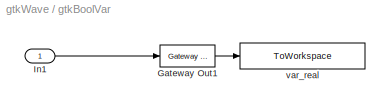
BLOCK [SubSystem] gtkBoolVar
  MaskDescription = Capture a Boolean signal to view in gtkWave.
  MaskDisplay = disp('gtkBool')
  MaskIconFrame = on
  MaskIconOpaque = on
  MaskIconRotate = none
  MaskIconUnits = autoscale
  MaskInitialization = gtkBool_init
  MaskSelfModifiable = on
  MinAlgLoopOccurrences = off
  Ports = [1]
  RTWSystemCode = Auto
  TreatAsAtomicUnit = off
BLOCK [Reference] gtkBoolVar/Gateway Out1  REF=xbsIndex_r3/Gateway Out
  LOCs = {}
  Ports = [1, 1]
  SourceBlock = xbsIndex_r3/Gateway Out
  SourceType = Xilinx Gateway Out
  arith_type = Boolean
  bin_pt = 6
  hdl_port = off
  locs_specified = off
  nbits = 8
  needs_fixed_name = off
  output_type = Double
  overflow = Wrap
  quantization = Truncate
  show_param = off
  timing_constraint = None
  xl_area = [0, 0, 0, 0, 0, 0, 0]
  xl_use_area = off
BLOCK [Inport] gtkBoolVar/In1
  IconDisplay = Port number
  LatchInput = off
  Port = 1
BLOCK [ToWorkspace] gtkBoolVar/var_real
  MaxDataPoints = inf
  SampleTime = -1
  SaveFormat = Structure With Time
  VariableName = gtk_gtkWave__gtkBoolVar_bool
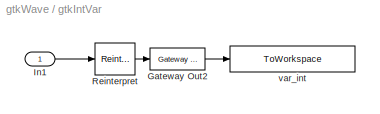
BLOCK [SubSystem] gtkIntVar
  MaskDescription = Capture an Integer signal to view in gtkWave.\ngtkWave does not support fixed point variables, so all integers will appear with binary point at 0.\nThe input signal to this block should be less than 50 bits wide, as it is represented in Matlab as a double.
  MaskDisplay = disp(['gtkFix',num2str(width)])
  MaskEnableString = on
  MaskIconFrame = on
  MaskIconOpaque = on
  MaskIconRotate = none
  MaskIconUnits = autoscale
  MaskInitialization = gtkFix_init
  MaskPromptString = Bit Width
  MaskSelfModifiable = on
  MaskStyleString = edit
  MaskToolTipString = on
  MaskTunableValueString = on
  MaskValueString = 32
  MaskVariables = width=@1;
  MaskVisibilityString = on
  MinAlgLoopOccurrences = off
  Ports = [1]
  RTWSystemCode = Auto
  TreatAsAtomicUnit = off
BLOCK [Reference] gtkIntVar/Gateway Out2  REF=xbsIndex_r3/Gateway Out
  LOCs = {}
  Ports = [1, 1]
  SourceBlock = xbsIndex_r3/Gateway Out
  SourceType = Xilinx Gateway Out
  arith_type = Boolean
  bin_pt = 6
  hdl_port = off
  locs_specified = off
  nbits = 8
  needs_fixed_name = off
  output_type = Double
  overflow = Wrap
  quantization = Truncate
  show_param = off
  timing_constraint = None
  xl_area = [0, 0, 0, 0, 0, 0, 0]
  xl_use_area = off
BLOCK [Inport] gtkIntVar/In1
  IconDisplay = Port number
  LatchInput = off
  Port = 1
BLOCK [Reference] gtkIntVar/Reinterpret  REF=xbsIndex_r3/Reinterpret
  Ports = [1, 1]
  SourceBlock = xbsIndex_r3/Reinterpret
  SourceType = Xilinx Type Reinterpreting Block
  arith_type = Unsigned
  bin_pt = 0
  force_arith_type = on
  force_bin_pt = on
  force_valid = on
BLOCK [ToWorkspace] gtkIntVar/var_int
  MaxDataPoints = inf
  SampleTime = -1
  SaveFormat = Structure With Time
  VariableName = gtk_gtkWave__gtkIntVar_int32
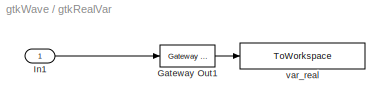
BLOCK [SubSystem] gtkRealVar
  MaskDescription = Capture a Real variable to view in gtkWave.\nInput is a Xilinx Fix interpreted as a real number.
  MaskDisplay = disp('gtkReal')
  MaskIconFrame = on
  MaskIconOpaque = on
  MaskIconRotate = none
  MaskIconUnits = autoscale
  MaskInitialization = gtkReal_init
  MaskSelfModifiable = on
  MinAlgLoopOccurrences = off
  Ports = [1]
  RTWSystemCode = Auto
  TreatAsAtomicUnit = off
BLOCK [Reference] gtkRealVar/Gateway Out1  REF=xbsIndex_r3/Gateway Out
  LOCs = {}
  Ports = [1, 1]
  SourceBlock = xbsIndex_r3/Gateway Out
  SourceType = Xilinx Gateway Out
  arith_type = Boolean
  bin_pt = 6
  hdl_port = off
  locs_specified = off
  nbits = 8
  needs_fixed_name = off
  output_type = Double
  overflow = Wrap
  quantization = Truncate
  show_param = off
  timing_constraint = None
  xl_area = [0, 0, 0, 0, 0, 0, 0]
  xl_use_area = off
BLOCK [Inport] gtkRealVar/In1
  IconDisplay = Port number
  LatchInput = off
  Port = 1
BLOCK [ToWorkspace] gtkRealVar/var_real
  MaxDataPoints = inf
  SampleTime = -1
  SaveFormat = Structure With Time
  VariableName = gtk_gtkWave__gtkRealVar_real
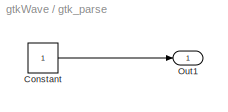
BLOCK [SubSystem] gtk_parse
  MaskDescription = asdf
  MaskDisplay = fprintf('Double Click\\nTo make and\\nView VCD')
  MaskEnableString = on
  MaskIconFrame = on
  MaskIconOpaque = on
  MaskIconRotate = none
  MaskIconUnits = autoscale
  MaskPromptString = dummy
  MaskStyleString = edit
  MaskToolTipString = on
  MaskTunableValueString = on
  MaskType = gtk_parse
  MaskValueString = 0
  MaskVariables = dummy=@1;
  MaskVisibilityString = on
  MinAlgLoopOccurrences = off
  OpenFcn = gtk_parse()
  Ports = [0, 1]
  RTWSystemCode = Auto
  StartFcn = gtkStartFcn()
  TreatAsAtomicUnit = off
BLOCK [Constant] gtk_parse/Constant
BLOCK [Outport] gtk_parse/Out1
  BusOutputAsStruct = off
  IconDisplay = Port number
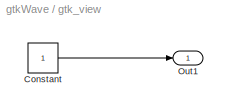
BLOCK [SubSystem] gtk_view
  MaskDescription = asdf
  MaskDisplay = disp('View VCD')
  MaskIconFrame = on
  MaskIconOpaque = on
  MaskIconRotate = none
  MaskIconUnits = autoscale
  MaskType = gtk_view
  MinAlgLoopOccurrences = off
  OpenFcn = gtk_view()
  Ports = [0, 1]
  RTWSystemCode = Auto
  TreatAsAtomicUnit = off
BLOCK [Constant] gtk_view/Constant
BLOCK [Outport] gtk_view/Out1
  BusOutputAsStruct = off
  IconDisplay = Port number
ANNOTATION (root): gtkWave Capture Blockset\nGlenn Jones \n2008.03.19\n\nConnect the Bool, Int, or Real blocks to Xilinx Fix signals to capture \nthe simulation data. The signal will show up in gtkWave with the same\nname as the Bool, Int, or Real block. Thus the default Bool variable name\nwould be 'gtkBoolVar'.\nDouble clicking the 'gtk_parse' block will parse the captured data \nand create a VCD file and open it ...<+650ch>
LINE gtkBoolVar/Gateway Out1:1 -> gtkBoolVar/var_real:1
LINE gtkBoolVar/In1:1 -> gtkBoolVar/Gateway Out1:1
LINE gtkIntVar/Gateway Out2:1 -> gtkIntVar/var_int:1
LINE gtkIntVar/In1:1 -> gtkIntVar/Reinterpret:1
LINE gtkIntVar/Reinterpret:1 -> gtkIntVar/Gateway Out2:1
LINE gtkRealVar/Gateway Out1:1 -> gtkRealVar/var_real:1
LINE gtkRealVar/In1:1 -> gtkRealVar/Gateway Out1:1
LINE gtk_parse/Constant:1 -> gtk_parse/Out1:1
LINE gtk_view/Constant:1 -> gtk_view/Out1:1
